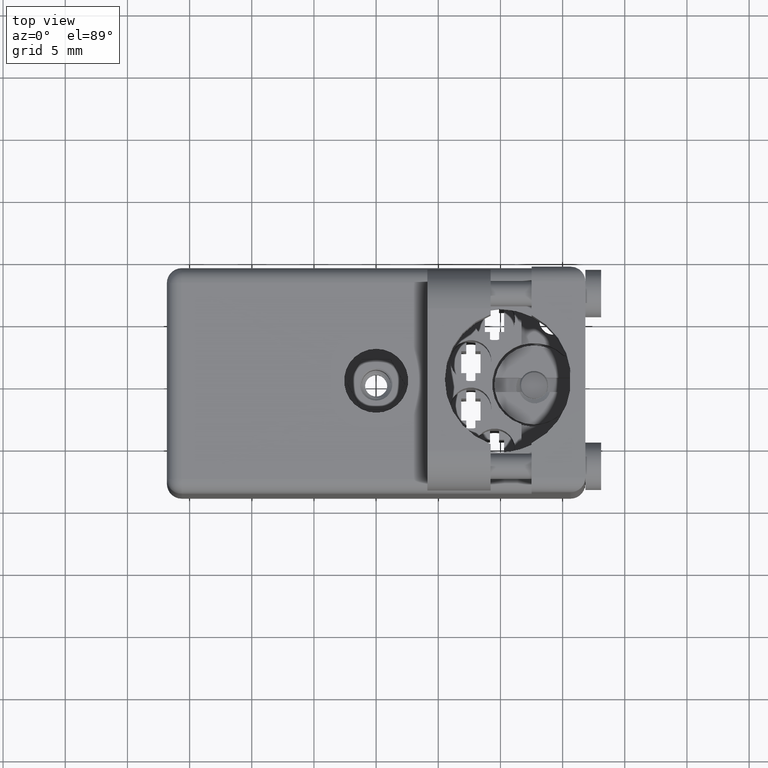
[diagram: clean part render]
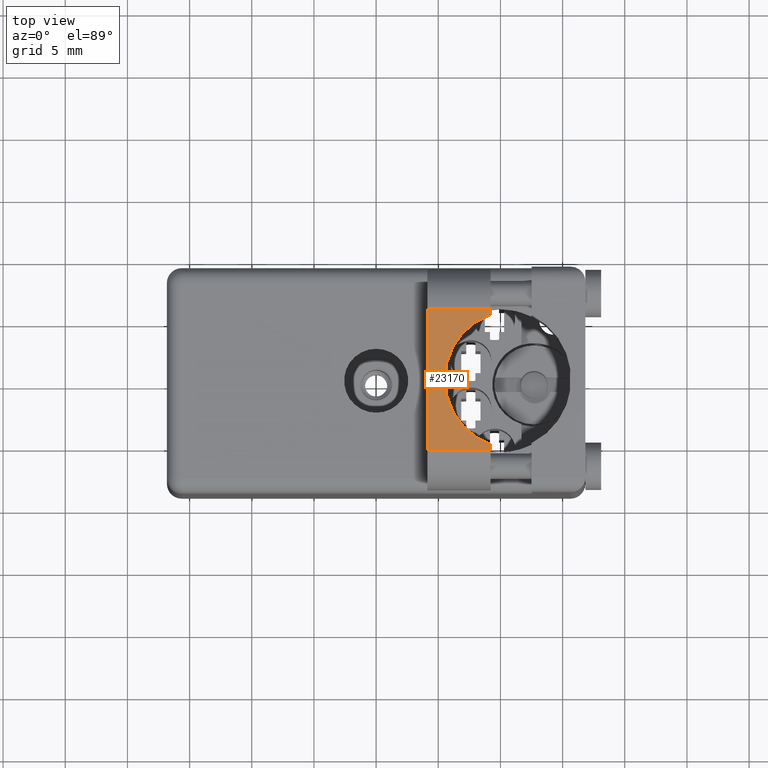
[diagram: same view with one face highlighted and labeled with its STEP entity id]
A machine part, top view. The second image highlights one B-rep face of the part: STEP entity #23170.
In plain terms, the highlighted planar face has unit normal (0, 0, 1).
Its self-contained STEP definition (entity closure, byte-faithful):
#181 = ORIENTED_EDGE ( 'NONE', *, *, #23839, .T. ) ;
#2516 = CARTESIAN_POINT ( 'NONE',  ( 0.8249999999999999600, 1.189999999999999900, -0.5824999999999999100 ) ) ;
#2950 = VERTEX_POINT ( 'NONE', #17596 ) ;
#5656 = DIRECTION ( 'NONE',  ( 0.0000000000000000000, 0.0000000000000000000, -1.000000000000000000 ) ) ;
#6054 = VECTOR ( 'NONE', #32174, 39.37007874015748100 ) ;
#6483 = CARTESIAN_POINT ( 'NONE',  ( 1.024999999999999900, 1.189999999999999900, -0.1324999999999999200 ) ) ;
#6972 = CIRCLE ( 'NONE', #21544, 0.2180000000000000300 ) ;
#7956 = LINE ( 'NONE', #2516, #21425 ) ;
#8212 = VECTOR ( 'NONE', #5656, 39.37007874015748100 ) ;
#8497 = LINE ( 'NONE', #30544, #22355 ) ;
#9421 = CARTESIAN_POINT ( 'NONE',  ( 1.024999999999999900, 1.189999999999999900, -0.1520857843283478500 ) ) ;
#9852 = CARTESIAN_POINT ( 'NONE',  ( 1.024999999999999900, 1.189999999999999900, -0.5629142156716522300 ) ) ;
#10059 = VERTEX_POINT ( 'NONE', #9421 ) ;
#10815 = VERTEX_POINT ( 'NONE', #9852 ) ;
#10911 = AXIS2_PLACEMENT_3D ( 'NONE', #15228, #31987, #12678 ) ;
#11910 = ORIENTED_EDGE ( 'NONE', *, *, #25052, .F. ) ;
#11993 = VERTEX_POINT ( 'NONE', #6483 ) ;
#12678 = DIRECTION ( 'NONE',  ( 0.0000000000000000000, 0.0000000000000000000, 1.000000000000000000 ) ) ;
#12717 = ORIENTED_EDGE ( 'NONE', *, *, #24821, .T. ) ;
#12750 = CARTESIAN_POINT ( 'NONE',  ( 1.024999999999999900, 1.189999999999999900, -0.1324999999999999200 ) ) ;
#14515 = ORIENTED_EDGE ( 'NONE', *, *, #19679, .F. ) ;
#14688 = LINE ( 'NONE', #32493, #8212 ) ;
#15228 = CARTESIAN_POINT ( 'NONE',  ( 1.024999999999999900, 1.189999999999999900, -0.5824999999999999100 ) ) ;
#17345 = CARTESIAN_POINT ( 'NONE',  ( 1.024999999999999900, 1.189999999999999900, -0.5824999999999999100 ) ) ;
#17596 = CARTESIAN_POINT ( 'NONE',  ( 0.8249999999999999600, 1.189999999999999900, -0.1324999999999999200 ) ) ;
#19243 = ORIENTED_EDGE ( 'NONE', *, *, #32088, .F. ) ;
#19268 = DIRECTION ( 'NONE',  ( 0.0000000000000000000, 1.000000000000000000, 0.0000000000000000000 ) ) ;
#19502 = DIRECTION ( 'NONE',  ( 0.0000000000000000000, 0.0000000000000000000, 1.000000000000000000 ) ) ;
#19679 = EDGE_CURVE ( 'NONE', #10815, #10059, #6972, .T. ) ;
#20537 = EDGE_LOOP ( 'NONE', ( #14515, #12717, #181, #11910, #19243, #29917 ) ) ;
#20817 = LINE ( 'NONE', #12750, #6054 ) ;
#21425 = VECTOR ( 'NONE', #35643, 39.37007874015748100 ) ;
#21440 = LINE ( 'NONE', #31647, #33180 ) ;
#21527 = EDGE_CURVE ( 'NONE', #11993, #10059, #14688, .T. ) ;
#21544 = AXIS2_PLACEMENT_3D ( 'NONE', #24968, #19268, #19502 ) ;
#22355 = VECTOR ( 'NONE', #25336, 39.37007874015748100 ) ;
#23170 = ADVANCED_FACE ( 'NONE', ( #35029 ), #34909, .T. ) ;
#23839 = EDGE_CURVE ( 'NONE', #29323, #32081, #8497, .T. ) ;
#24821 = EDGE_CURVE ( 'NONE', #10815, #29323, #21440, .T. ) ;
#24968 = CARTESIAN_POINT ( 'NONE',  ( 1.097999999999999900, 1.189999999999999900, -0.3574999999999999800 ) ) ;
#25052 = EDGE_CURVE ( 'NONE', #2950, #32081, #7956, .T. ) ;
#25336 = DIRECTION ( 'NONE',  ( -1.000000000000000000, 0.0000000000000000000, 0.0000000000000000000 ) ) ;
#29323 = VERTEX_POINT ( 'NONE', #17345 ) ;
#29381 = CARTESIAN_POINT ( 'NONE',  ( 0.8249999999999999600, 1.189999999999999900, -0.5824999999999999100 ) ) ;
#29917 = ORIENTED_EDGE ( 'NONE', *, *, #21527, .T. ) ;
#30544 = CARTESIAN_POINT ( 'NONE',  ( 1.024999999999999900, 1.189999999999999900, -0.5824999999999999100 ) ) ;
#31647 = CARTESIAN_POINT ( 'NONE',  ( 1.024999999999999900, 1.189999999999999900, -0.5824999999999999100 ) ) ;
#31987 = DIRECTION ( 'NONE',  ( 0.0000000000000000000, 1.000000000000000000, 0.0000000000000000000 ) ) ;
#32081 = VERTEX_POINT ( 'NONE', #29381 ) ;
#32088 = EDGE_CURVE ( 'NONE', #11993, #2950, #20817, .T. ) ;
#32174 = DIRECTION ( 'NONE',  ( -1.000000000000000000, 0.0000000000000000000, 0.0000000000000000000 ) ) ;
#32493 = CARTESIAN_POINT ( 'NONE',  ( 1.024999999999999900, 1.189999999999999900, -0.5824999999999999100 ) ) ;
#33180 = VECTOR ( 'NONE', #34434, 39.37007874015748100 ) ;
#34434 = DIRECTION ( 'NONE',  ( 0.0000000000000000000, 0.0000000000000000000, -1.000000000000000000 ) ) ;
#34909 = PLANE ( 'NONE',  #10911 ) ;
#35029 = FACE_OUTER_BOUND ( 'NONE', #20537, .T. ) ;
#35643 = DIRECTION ( 'NONE',  ( 0.0000000000000000000, 0.0000000000000000000, -1.000000000000000000 ) ) ;